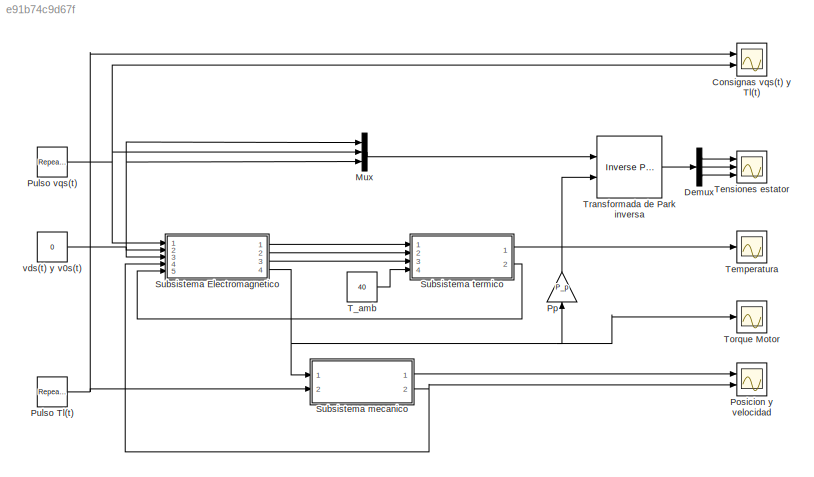
MODEL slx_e91b74c9d67f
KIND model
CONFIG AbsTol = auto
CONFIG EnableMultiTasking = off
CONFIG FixedStep = auto
CONFIG MaxStep = 1e-6
CONFIG MinStep = auto
CONFIG RelTol = 1e-6
CONFIG SampleTimeConstraint = Unconstrained
CONFIG Solver = ode15s
CONFIG SolverName = ode15s
CONFIG StartTime = 0.0
CONFIG StopTime = 10.0
BLOCK [Scope] Consignas vqs(t) y Tl(t)
  Floating = off
  NumInputPorts = 2
  Ports = [2]
  ScopeSpecificationString = Simulink.scopes.TimeScopeBlockCfg('CurrentConfiguration', extmgr.ConfigurationSet(extmgr.Configuration('Core','General UI',true),extmgr.Configuration('Core','Source UI',true),extmgr.Configuration('Sources','WiredSimulink',true,'DataLoggingVariableName','ScopeData1'),extmgr.Configuration('Visuals','Time Domain',true,'SerializedDisplays',{struct('MinYLimReal','-9.5145','MaxYLimReal','22.8305','YLabe...<+1429ch>
BLOCK [Demux] Demux
  DisplayOption = bar
  Outputs = 3
  Ports = [1, 3]
BLOCK [Mux] Mux
  DisplayOption = bar
  Inputs = 3
  Ports = [3, 1]
BLOCK [Scope] Posicion y velocidad
  Floating = off
  NumInputPorts = 2
  Ports = [2]
  ScopeSpecificationString = Simulink.scopes.TimeScopeBlockCfg('CurrentConfiguration', extmgr.ConfigurationSet(extmgr.Configuration('Core','General UI',true),extmgr.Configuration('Core','Source UI',true),extmgr.Configuration('Sources','WiredSimulink',true),extmgr.Configuration('Visuals','Time Domain',true,'SerializedDisplays',{struct('MinYLimReal','-145.09753','MaxYLimReal','1177.99871','YLabelReal','','MinYLimMag',' 0.00000'...<+1440ch>
BLOCK [Gain] Pp
  Gain = P_p
  OutDataTypeStr = Inherit: Inherit via internal rule
  ParamDataTypeStr = Inherit: Inherit via internal rule
  SaturateOnIntegerOverflow = off
BLOCK [Reference] Pulso Tl(t)  REF=simulink/Sources/Repeating
Sequence
  Ports = [0, 1]
  SourceBlock = simulink/Sources/Repeating\nSequence
  SourceProductBaseCode = SL
  SourceProductName = Simulink
  SourceType = Repeating table
BLOCK [Reference] Pulso vqs(t)  REF=simulink/Sources/Repeating
Sequence
  Ports = [0, 1]
  SourceBlock = simulink/Sources/Repeating\nSequence
  SourceProductBaseCode = SL
  SourceProductName = Simulink
  SourceType = Repeating table
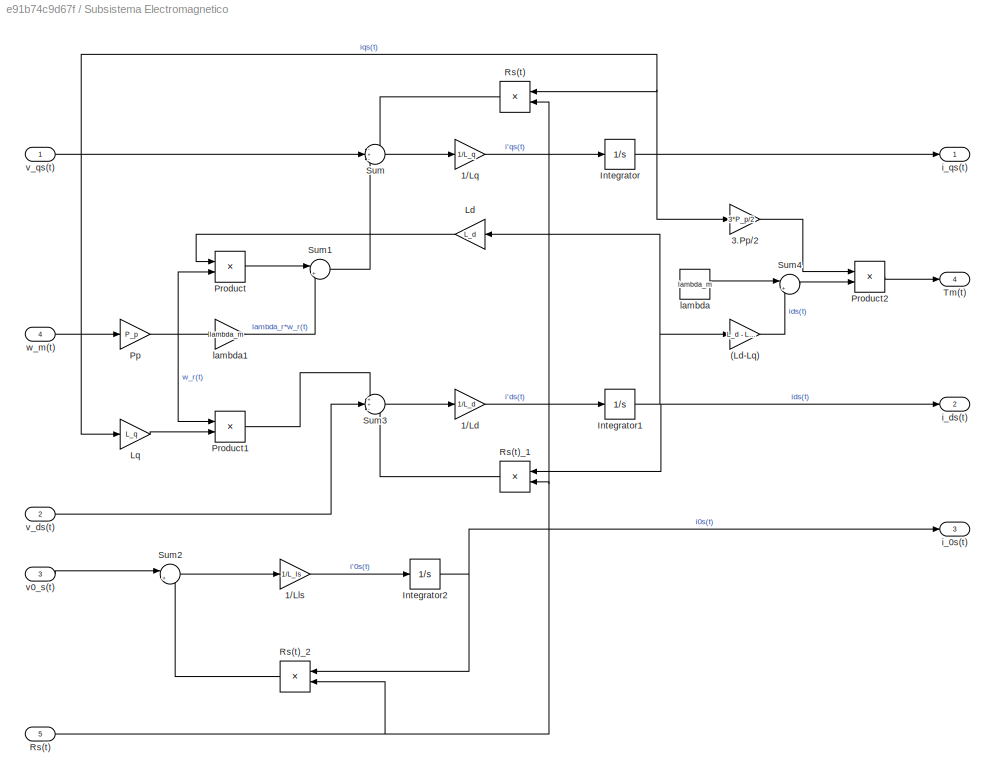
BLOCK [SubSystem] Subsistema Electromagnetico
  Ports = [5, 4]
  RequestExecContextInheritance = off
BLOCK [Gain] Subsistema Electromagnetico/(Ld-Lq)
  Gain = L_d - L_q
  OutDataTypeStr = Inherit: Inherit via internal rule
  ParamDataTypeStr = Inherit: Inherit via internal rule
  SaturateOnIntegerOverflow = off
BLOCK [Gain] Subsistema Electromagnetico/1//Ld
  Gain = 1/L_d
  OutDataTypeStr = Inherit: Inherit via internal rule
  ParamDataTypeStr = Inherit: Inherit via internal rule
  SaturateOnIntegerOverflow = off
BLOCK [Gain] Subsistema Electromagnetico/1//Lls
  Gain = 1/L_ls
  OutDataTypeStr = Inherit: Inherit via internal rule
  ParamDataTypeStr = Inherit: Inherit via internal rule
  SaturateOnIntegerOverflow = off
BLOCK [Gain] Subsistema Electromagnetico/1//Lq
  Gain = 1/L_q
  OutDataTypeStr = Inherit: Inherit via internal rule
  ParamDataTypeStr = Inherit: Inherit via internal rule
  SaturateOnIntegerOverflow = off
BLOCK [Gain] Subsistema Electromagnetico/3.Pp//2
  Gain = 3*P_p/2
  OutDataTypeStr = Inherit: Inherit via internal rule
  ParamDataTypeStr = Inherit: Inherit via internal rule
  SaturateOnIntegerOverflow = off
BLOCK [Integrator] Subsistema Electromagnetico/Integrator
  Ports = [1, 1]
BLOCK [Integrator] Subsistema Electromagnetico/Integrator1
  Ports = [1, 1]
BLOCK [Integrator] Subsistema Electromagnetico/Integrator2
  Ports = [1, 1]
BLOCK [Gain] Subsistema Electromagnetico/Ld
  Gain = L_d
  OutDataTypeStr = Inherit: Inherit via internal rule
  ParamDataTypeStr = Inherit: Inherit via internal rule
  SaturateOnIntegerOverflow = off
BLOCK [Gain] Subsistema Electromagnetico/Lq
  Gain = L_q
  OutDataTypeStr = Inherit: Inherit via internal rule
  ParamDataTypeStr = Inherit: Inherit via internal rule
  SaturateOnIntegerOverflow = off
BLOCK [Gain] Subsistema Electromagnetico/Pp
  Gain = P_p
  OutDataTypeStr = Inherit: Inherit via internal rule
  ParamDataTypeStr = Inherit: Inherit via internal rule
  SaturateOnIntegerOverflow = off
BLOCK [Product] Subsistema Electromagnetico/Product
  InputSameDT = off
  OutDataTypeStr = Inherit: Inherit via internal rule
  Ports = [2, 1]
  RndMeth = Floor
  SaturateOnIntegerOverflow = off
BLOCK [Product] Subsistema Electromagnetico/Product1
  InputSameDT = off
  OutDataTypeStr = Inherit: Inherit via internal rule
  Ports = [2, 1]
  RndMeth = Floor
  SaturateOnIntegerOverflow = off
BLOCK [Product] Subsistema Electromagnetico/Product2
  InputSameDT = off
  OutDataTypeStr = Inherit: Inherit via internal rule
  Ports = [2, 1]
  RndMeth = Floor
  SaturateOnIntegerOverflow = off
BLOCK [Product] Subsistema Electromagnetico/Rs(t)
  InputSameDT = off
  OutDataTypeStr = Inherit: Inherit via internal rule
  Ports = [2, 1]
  RndMeth = Floor
  SaturateOnIntegerOverflow = off
BLOCK [Inport] Subsistema Electromagnetico/Rs(t) 
  IconDisplay = Port number
  Port = 5
BLOCK [Product] Subsistema Electromagnetico/Rs(t)_1
  InputSameDT = off
  OutDataTypeStr = Inherit: Inherit via internal rule
  Ports = [2, 1]
  RndMeth = Floor
  SaturateOnIntegerOverflow = off
BLOCK [Product] Subsistema Electromagnetico/Rs(t)_2
  InputSameDT = off
  OutDataTypeStr = Inherit: Inherit via internal rule
  Ports = [2, 1]
  RndMeth = Floor
  SaturateOnIntegerOverflow = off
BLOCK [Sum] Subsistema Electromagnetico/Sum
  IconShape = round
  InputSameDT = off
  Inputs = -+-
  OutDataTypeStr = Inherit: Inherit via internal rule
  Ports = [3, 1]
  SaturateOnIntegerOverflow = off
BLOCK [Sum] Subsistema Electromagnetico/Sum1
  IconShape = round
  InputSameDT = off
  Inputs = |++
  OutDataTypeStr = Inherit: Inherit via internal rule
  Ports = [2, 1]
  SaturateOnIntegerOverflow = off
BLOCK [Sum] Subsistema Electromagnetico/Sum2
  IconShape = round
  InputSameDT = off
  Inputs = |+-
  OutDataTypeStr = Inherit: Inherit via internal rule
  Ports = [2, 1]
  SaturateOnIntegerOverflow = off
BLOCK [Sum] Subsistema Electromagnetico/Sum3
  IconShape = round
  InputSameDT = off
  Inputs = ++-
  OutDataTypeStr = Inherit: Inherit via internal rule
  Ports = [3, 1]
  SaturateOnIntegerOverflow = off
BLOCK [Sum] Subsistema Electromagnetico/Sum4
  IconShape = round
  InputSameDT = off
  Inputs = |++
  OutDataTypeStr = Inherit: Inherit via internal rule
  Ports = [2, 1]
  SaturateOnIntegerOverflow = off
BLOCK [Outport] Subsistema Electromagnetico/Tm(t)
  IconDisplay = Port number
  Port = 4
BLOCK [Outport] Subsistema Electromagnetico/i_0s(t) 
  IconDisplay = Port number
  Port = 3
BLOCK [Outport] Subsistema Electromagnetico/i_ds(t)
  IconDisplay = Port number
  Port = 2
BLOCK [Outport] Subsistema Electromagnetico/i_qs(t) 
  IconDisplay = Port number
BLOCK [Constant] Subsistema Electromagnetico/lambda
  Value = lambda_m
BLOCK [Gain] Subsistema Electromagnetico/lambda1
  Gain = lambda_m
  OutDataTypeStr = Inherit: Inherit via internal rule
  ParamDataTypeStr = Inherit: Inherit via internal rule
  SaturateOnIntegerOverflow = off
BLOCK [Inport] Subsistema Electromagnetico/v0_s(t)
  IconDisplay = Port number
  Port = 3
BLOCK [Inport] Subsistema Electromagnetico/v_ds(t)
  IconDisplay = Port number
  Port = 2
BLOCK [Inport] Subsistema Electromagnetico/v_qs(t)
  IconDisplay = Port number
BLOCK [Inport] Subsistema Electromagnetico/w_m(t)
  IconDisplay = Port number
  Port = 4
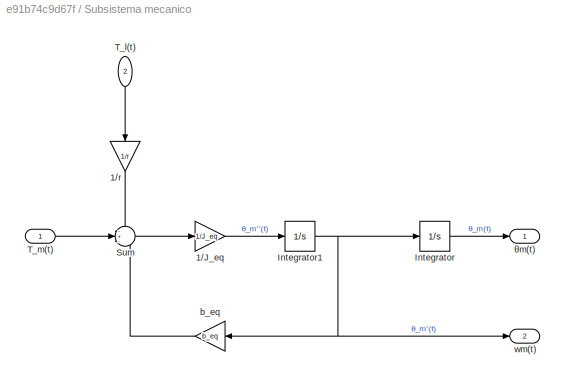
BLOCK [SubSystem] Subsistema mecanico 
  Ports = [2, 2]
  RequestExecContextInheritance = off
BLOCK [Gain] Subsistema mecanico /1//J_eq 
  Gain = 1/J_eq
  OutDataTypeStr = Inherit: Inherit via internal rule
  ParamDataTypeStr = Inherit: Inherit via internal rule
  SaturateOnIntegerOverflow = off
BLOCK [Gain] Subsistema mecanico /1//r
  Gain = 1/r
  OutDataTypeStr = Inherit: Inherit via internal rule
  ParamDataTypeStr = Inherit: Inherit via internal rule
  SaturateOnIntegerOverflow = off
BLOCK [Integrator] Subsistema mecanico /Integrator
  Ports = [1, 1]
BLOCK [Integrator] Subsistema mecanico /Integrator1
  Ports = [1, 1]
BLOCK [Sum] Subsistema mecanico /Sum
  IconShape = round
  InputSameDT = off
  Inputs = -+-
  OutDataTypeStr = Inherit: Inherit via internal rule
  Ports = [3, 1]
  SaturateOnIntegerOverflow = off
BLOCK [Inport] Subsistema mecanico /T_l(t) 
  IconDisplay = Port number
  Port = 2
BLOCK [Inport] Subsistema mecanico /T_m(t) 
  IconDisplay = Port number
BLOCK [Gain] Subsistema mecanico /b_eq
  Gain = b_eq
  OutDataTypeStr = Inherit: Inherit via internal rule
  ParamDataTypeStr = Inherit: Inherit via internal rule
  SaturateOnIntegerOverflow = off
BLOCK [Outport] Subsistema mecanico /wm(t)
  IconDisplay = Port number
  Port = 2
BLOCK [Outport] Subsistema mecanico /θm(t)
  IconDisplay = Port number
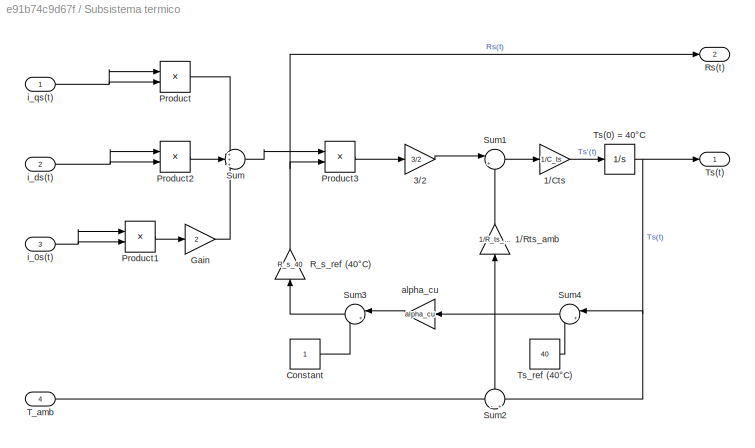
BLOCK [SubSystem] Subsistema termico 
  Ports = [4, 2]
  RequestExecContextInheritance = off
BLOCK [Gain] Subsistema termico /1//Cts
  Gain = 1/C_ts
  OutDataTypeStr = Inherit: Inherit via internal rule
  ParamDataTypeStr = Inherit: Inherit via internal rule
  SaturateOnIntegerOverflow = off
BLOCK [Gain] Subsistema termico /1//Rts_amb
  Gain = 1/R_ts_amb
  OutDataTypeStr = Inherit: Inherit via internal rule
  ParamDataTypeStr = Inherit: Inherit via internal rule
  SaturateOnIntegerOverflow = off
BLOCK [Gain] Subsistema termico /3//2
  Gain = 3/2
  OutDataTypeStr = Inherit: Inherit via internal rule
  ParamDataTypeStr = Inherit: Inherit via internal rule
  SaturateOnIntegerOverflow = off
BLOCK [Constant] Subsistema termico /Constant
BLOCK [Gain] Subsistema termico /Gain
  Gain = 2
  OutDataTypeStr = Inherit: Inherit via internal rule
  ParamDataTypeStr = Inherit: Inherit via internal rule
  SaturateOnIntegerOverflow = off
BLOCK [Product] Subsistema termico /Product
  InputSameDT = off
  OutDataTypeStr = Inherit: Inherit via internal rule
  Ports = [2, 1]
  RndMeth = Floor
  SaturateOnIntegerOverflow = off
BLOCK [Product] Subsistema termico /Product1
  InputSameDT = off
  OutDataTypeStr = Inherit: Inherit via internal rule
  Ports = [2, 1]
  RndMeth = Floor
  SaturateOnIntegerOverflow = off
BLOCK [Product] Subsistema termico /Product2
  InputSameDT = off
  OutDataTypeStr = Inherit: Inherit via internal rule
  Ports = [2, 1]
  RndMeth = Floor
  SaturateOnIntegerOverflow = off
BLOCK [Product] Subsistema termico /Product3
  InputSameDT = off
  OutDataTypeStr = Inherit: Inherit via internal rule
  Ports = [2, 1]
  RndMeth = Floor
  SaturateOnIntegerOverflow = off
BLOCK [Gain] Subsistema termico /R_s_ref (40°C)
  Gain = R_s_40
  OutDataTypeStr = Inherit: Inherit via internal rule
  ParamDataTypeStr = Inherit: Inherit via internal rule
  SaturateOnIntegerOverflow = off
BLOCK [Outport] Subsistema termico /Rs(t)
  IconDisplay = Port number
  Port = 2
BLOCK [Sum] Subsistema termico /Sum
  IconShape = round
  InputSameDT = off
  Inputs = +++
  OutDataTypeStr = Inherit: Inherit via internal rule
  Ports = [3, 1]
  SaturateOnIntegerOverflow = off
BLOCK [Sum] Subsistema termico /Sum1
  IconShape = round
  InputSameDT = off
  Inputs = |+-
  OutDataTypeStr = Inherit: Inherit via internal rule
  Ports = [2, 1]
  SaturateOnIntegerOverflow = off
BLOCK [Sum] Subsistema termico /Sum2
  IconShape = round
  InputSameDT = off
  Inputs = -|+
  OutDataTypeStr = Inherit: Inherit via internal rule
  Ports = [2, 1]
  SaturateOnIntegerOverflow = off
BLOCK [Sum] Subsistema termico /Sum3
  IconShape = round
  InputSameDT = off
  Inputs = |++
  OutDataTypeStr = Inherit: Inherit via internal rule
  Ports = [2, 1]
  SaturateOnIntegerOverflow = off
BLOCK [Sum] Subsistema termico /Sum4
  IconShape = round
  InputSameDT = off
  Inputs = |+-
  OutDataTypeStr = Inherit: Inherit via internal rule
  Ports = [2, 1]
  SaturateOnIntegerOverflow = off
BLOCK [Inport] Subsistema termico /T_amb
  IconDisplay = Port number
  Port = 4
BLOCK [Integrator] Subsistema termico /Ts(0) = 40°C
  InitialCondition = 40
  Ports = [1, 1]
BLOCK [Outport] Subsistema termico /Ts(t)
  IconDisplay = Port number
BLOCK [Constant] Subsistema termico /Ts_ref (40°C)
  Value = 40
BLOCK [Gain] Subsistema termico /alpha_cu
  Gain = alpha_cu
  OutDataTypeStr = Inherit: Inherit via internal rule
  ParamDataTypeStr = Inherit: Inherit via internal rule
  SaturateOnIntegerOverflow = off
BLOCK [Inport] Subsistema termico /i_0s(t)
  IconDisplay = Port number
  Port = 3
BLOCK [Inport] Subsistema termico /i_ds(t) 
  IconDisplay = Port number
  Port = 2
BLOCK [Inport] Subsistema termico /i_qs(t) 
  IconDisplay = Port number
BLOCK [Constant] T_amb
  Value = 40
BLOCK [Scope] Temperatura
  Floating = off
  NumInputPorts = 1
  Ports = [1]
  ScopeSpecificationString = Simulink.scopes.TimeScopeBlockCfg('CurrentConfiguration', extmgr.ConfigurationSet(extmgr.Configuration('Core','General UI',true),extmgr.Configuration('Core','Source UI',true),extmgr.Configuration('Sources','WiredSimulink',true,'DataLoggingVariableName','ScopeData1'),extmgr.Configuration('Visuals','Time Domain',true,'SerializedDisplays',{struct('MinYLimReal','39.05407','MaxYLimReal','48.51333','YLa...<+1464ch>
BLOCK [Scope] Tensiones estator
  Floating = off
  NumInputPorts = 3
  Ports = [3]
  ScopeSpecificationString = Simulink.scopes.TimeScopeBlockCfg('CurrentConfiguration', extmgr.ConfigurationSet(extmgr.Configuration('Core','General UI',true),extmgr.Configuration('Core','Source UI',true),extmgr.Configuration('Sources','WiredSimulink',true,'DataLoggingVariableName','ScopeData2'),extmgr.Configuration('Visuals','Time Domain',true,'SerializedDisplays',{struct('MinYLimReal','-20.04384','MaxYLimReal','20.64729','YL...<+1553ch>
BLOCK [Scope] Torque Motor
  Floating = off
  NumInputPorts = 1
  Ports = [1]
  ScopeSpecificationString = Simulink.scopes.TimeScopeBlockCfg('CurrentConfiguration', extmgr.ConfigurationSet(extmgr.Configuration('Core','General UI',true),extmgr.Configuration('Core','Source UI',true),extmgr.Configuration('Sources','WiredSimulink',true,'DataLoggingVariableName','ScopeData1'),extmgr.Configuration('Visuals','Time Domain',true,'SerializedDisplays',{struct('MinYLimReal','-0.88941','MaxYLimReal','0.88572','YLab...<+1436ch>
BLOCK [Reference] Transformada de Park inversa   REF=eeTransforms/Inverse
Park Transform
  Ports = [2, 1]
  SourceBlock = eeTransforms/Inverse\nPark Transform
  SourceProductBaseCode = PS
  SourceProductName = Simscape Electrical
  SourceType = Inverse Park Transform
BLOCK [Constant] vds(t) y v0s(t)
  Value = 0
LINE Demux:1 -> Tensiones estator:1
LINE Demux:2 -> Tensiones estator:2
LINE Demux:3 -> Tensiones estator:3
LINE Mux:1 -> Transformada de Park inversa :1
LINE Pp:1 -> Transformada de Park inversa :2
NET Pulso Tl(t):1 -> Consignas vqs(t) y Tl(t):1, Subsistema mecanico :2
NET Pulso vqs(t):1 -> Consignas vqs(t) y Tl(t):2, Mux:2, Subsistema Electromagnetico:1
LINE Subsistema Electromagnetico/(Ld-Lq):1 -> Subsistema Electromagnetico/Sum4:2
LINE Subsistema Electromagnetico/1//Ld:1 -> Subsistema Electromagnetico/Integrator1:1
LINE Subsistema Electromagnetico/1//Lls:1 -> Subsistema Electromagnetico/Integrator2:1
LINE Subsistema Electromagnetico/1//Lq:1 -> Subsistema Electromagnetico/Integrator:1
LINE Subsistema Electromagnetico/3.Pp//2:1 -> Subsistema Electromagnetico/Product2:1
NET Subsistema Electromagnetico/Integrator1:1 -> Subsistema Electromagnetico/(Ld-Lq):1, Subsistema Electromagnetico/Ld:1, Subsistema Electromagnetico/Rs(t)_1:1, Subsistema Electromagnetico/i_ds(t):1
NET Subsistema Electromagnetico/Integrator2:1 -> Subsistema Electromagnetico/Rs(t)_2:1, Subsistema Electromagnetico/i_0s(t) :1
NET Subsistema Electromagnetico/Integrator:1 -> Subsistema Electromagnetico/3.Pp//2:1, Subsistema Electromagnetico/Lq:1, Subsistema Electromagnetico/Rs(t):1, Subsistema Electromagnetico/i_qs(t) :1
LINE Subsistema Electromagnetico/Ld:1 -> Subsistema Electromagnetico/Product:1
LINE Subsistema Electromagnetico/Lq:1 -> Subsistema Electromagnetico/Product1:2
NET Subsistema Electromagnetico/Pp:1 -> Subsistema Electromagnetico/Product1:1, Subsistema Electromagnetico/Product:2, Subsistema Electromagnetico/lambda1:1
LINE Subsistema Electromagnetico/Product1:1 -> Subsistema Electromagnetico/Sum3:1
LINE Subsistema Electromagnetico/Product2:1 -> Subsistema Electromagnetico/Tm(t):1
LINE Subsistema Electromagnetico/Product:1 -> Subsistema Electromagnetico/Sum1:1
NET Subsistema Electromagnetico/Rs(t) :1 -> Subsistema Electromagnetico/Rs(t):2, Subsistema Electromagnetico/Rs(t)_1:2, Subsistema Electromagnetico/Rs(t)_2:2
LINE Subsistema Electromagnetico/Rs(t):1 -> Subsistema Electromagnetico/Sum:1
LINE Subsistema Electromagnetico/Rs(t)_1:1 -> Subsistema Electromagnetico/Sum3:3
LINE Subsistema Electromagnetico/Rs(t)_2:1 -> Subsistema Electromagnetico/Sum2:2
LINE Subsistema Electromagnetico/Sum1:1 -> Subsistema Electromagnetico/Sum:3
LINE Subsistema Electromagnetico/Sum2:1 -> Subsistema Electromagnetico/1//Lls:1
LINE Subsistema Electromagnetico/Sum3:1 -> Subsistema Electromagnetico/1//Ld:1
LINE Subsistema Electromagnetico/Sum4:1 -> Subsistema Electromagnetico/Product2:2
LINE Subsistema Electromagnetico/Sum:1 -> Subsistema Electromagnetico/1//Lq:1
LINE Subsistema Electromagnetico/lambda1:1 -> Subsistema Electromagnetico/Sum1:2
LINE Subsistema Electromagnetico/lambda:1 -> Subsistema Electromagnetico/Sum4:1
LINE Subsistema Electromagnetico/v0_s(t):1 -> Subsistema Electromagnetico/Sum2:1
LINE Subsistema Electromagnetico/v_ds(t):1 -> Subsistema Electromagnetico/Sum3:2
LINE Subsistema Electromagnetico/v_qs(t):1 -> Subsistema Electromagnetico/Sum:2
LINE Subsistema Electromagnetico/w_m(t):1 -> Subsistema Electromagnetico/Pp:1
LINE Subsistema Electromagnetico:1 -> Subsistema termico :1
LINE Subsistema Electromagnetico:2 -> Subsistema termico :2
LINE Subsistema Electromagnetico:3 -> Subsistema termico :3
NET Subsistema Electromagnetico:4 -> Pp:1, Subsistema mecanico :1, Torque Motor:1
LINE Subsistema mecanico /1//J_eq :1 -> Subsistema mecanico /Integrator1:1
LINE Subsistema mecanico /1//r:1 -> Subsistema mecanico /Sum:1
NET Subsistema mecanico /Integrator1:1 -> Subsistema mecanico /Integrator:1, Subsistema mecanico /b_eq:1, Subsistema mecanico /wm(t):1
LINE Subsistema mecanico /Integrator:1 -> Subsistema mecanico /θm(t):1
LINE Subsistema mecanico /Sum:1 -> Subsistema mecanico /1//J_eq :1
LINE Subsistema mecanico /T_l(t) :1 -> Subsistema mecanico /1//r:1
LINE Subsistema mecanico /T_m(t) :1 -> Subsistema mecanico /Sum:2
LINE Subsistema mecanico /b_eq:1 -> Subsistema mecanico /Sum:3
LINE Subsistema mecanico :1 -> Posicion y velocidad:1
NET Subsistema mecanico :2 -> Posicion y velocidad:2, Subsistema Electromagnetico:4
LINE Subsistema termico /1//Cts:1 -> Subsistema termico /Ts(0) = 40°C:1
LINE Subsistema termico /1//Rts_amb:1 -> Subsistema termico /Sum1:2
LINE Subsistema termico /3//2:1 -> Subsistema termico /Sum1:1
LINE Subsistema termico /Constant:1 -> Subsistema termico /Sum3:2
LINE Subsistema termico /Gain:1 -> Subsistema termico /Sum:3
LINE Subsistema termico /Product1:1 -> Subsistema termico /Gain:1
LINE Subsistema termico /Product2:1 -> Subsistema termico /Sum:2
LINE Subsistema termico /Product3:1 -> Subsistema termico /3//2:1
LINE Subsistema termico /Product:1 -> Subsistema termico /Sum:1
NET Subsistema termico /R_s_ref (40°C):1 -> Subsistema termico /Product3:2, Subsistema termico /Rs(t):1
LINE Subsistema termico /Sum1:1 -> Subsistema termico /1//Cts:1
LINE Subsistema termico /Sum2:1 -> Subsistema termico /1//Rts_amb:1
LINE Subsistema termico /Sum3:1 -> Subsistema termico /R_s_ref (40°C):1
LINE Subsistema termico /Sum4:1 -> Subsistema termico /alpha_cu:1
LINE Subsistema termico /Sum:1 -> Subsistema termico /Product3:1
LINE Subsistema termico /T_amb:1 -> Subsistema termico /Sum2:1
NET Subsistema termico /Ts(0) = 40°C:1 -> Subsistema termico /Sum2:2, Subsistema termico /Sum4:1, Subsistema termico /Ts(t):1
LINE Subsistema termico /Ts_ref (40°C):1 -> Subsistema termico /Sum4:2
LINE Subsistema termico /alpha_cu:1 -> Subsistema termico /Sum3:1
NET Subsistema termico /i_0s(t):1 -> Subsistema termico /Product1:1, Subsistema termico /Product1:2
NET Subsistema termico /i_ds(t) :1 -> Subsistema termico /Product2:1, Subsistema termico /Product2:2
NET Subsistema termico /i_qs(t) :1 -> Subsistema termico /Product:1, Subsistema termico /Product:2
LINE Subsistema termico :1 -> Temperatura:1
LINE Subsistema termico :2 -> Subsistema Electromagnetico:5
LINE T_amb:1 -> Subsistema termico :4
LINE Transformada de Park inversa :1 -> Demux:1
NET vds(t) y v0s(t):1 -> Mux:1, Mux:3, Subsistema Electromagnetico:2, Subsistema Electromagnetico:3
note: NET lines group one-source signal fan-out (src -> all destinations, sorted); 1:1 wires keep LINE
